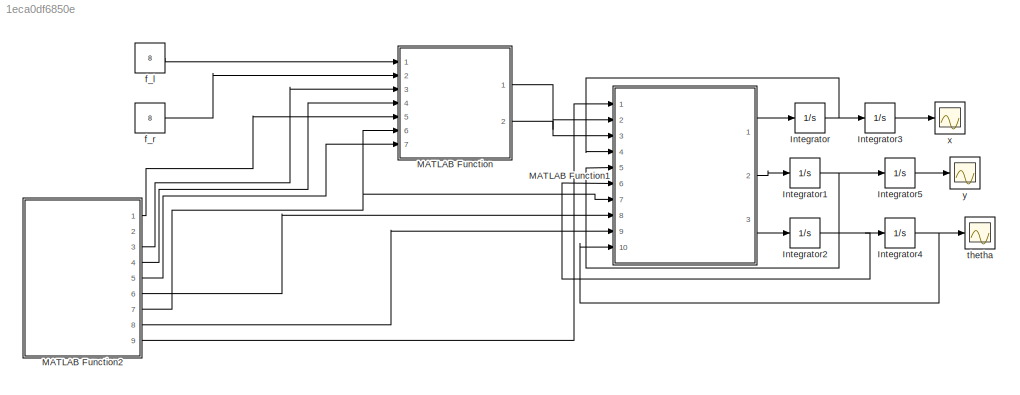
MODEL slx_1eca0df6850e
KIND model
CONFIG AbsTol = auto
CONFIG EnableMultiTasking = off
CONFIG FixedStep = auto
CONFIG MaxStep = auto
CONFIG MinStep = auto
CONFIG RelTol = 1e-3
CONFIG SampleTimeConstraint = Unconstrained
CONFIG Solver = VariableStepAuto
CONFIG SolverName = VariableStepAuto
CONFIG StartTime = 0.0
CONFIG StopTime = 50.0
BLOCK [Integrator] Integrator
  Ports = [1, 1]
BLOCK [Integrator] Integrator1
  Ports = [1, 1]
BLOCK [Integrator] Integrator2
  Ports = [1, 1]
BLOCK [Integrator] Integrator3
  Ports = [1, 1]
BLOCK [Integrator] Integrator4
  Ports = [1, 1]
BLOCK [Integrator] Integrator5
  Ports = [1, 1]
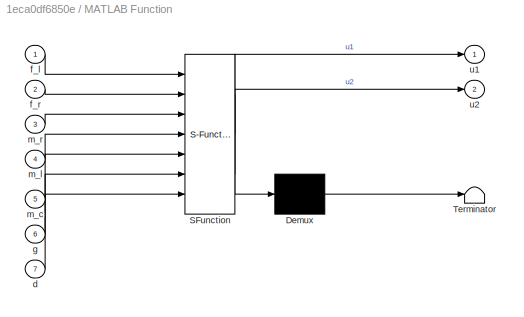
BLOCK [SubSystem] MATLAB Function
  ErrorFcn = Stateflow.Translate.translate
  PermitHierarchicalResolution = ExplicitOnly
  Ports = [7, 2]
  RequestExecContextInheritance = off
  SFBlockType = MATLAB Function
  TreatAsAtomicUnit = on
BLOCK [Demux] MATLAB Function/ Demux 
  Outputs = 1
  Ports = [1, 1]
BLOCK [S-Function] MATLAB Function/ SFunction 
  EnableBusSupport = on
  FunctionName = sf_sfun
  PortCounts = [7 3]
  Ports = [7, 3]
  SFcnIsStateOwnerBlock = off
  SFunctionDeploymentMode = off
  Tag = Stateflow S-Function cnt2019a_new 2
BLOCK [Terminator] MATLAB Function/ Terminator 
BLOCK [Inport] MATLAB Function/d
  IconDisplay = Port number
  Port = 7
BLOCK [Inport] MATLAB Function/f_l
  IconDisplay = Port number
BLOCK [Inport] MATLAB Function/f_r
  IconDisplay = Port number
  Port = 2
BLOCK [Inport] MATLAB Function/g
  IconDisplay = Port number
  Port = 6
BLOCK [Inport] MATLAB Function/m_c
  IconDisplay = Port number
  Port = 5
BLOCK [Inport] MATLAB Function/m_l
  IconDisplay = Port number
  Port = 4
BLOCK [Inport] MATLAB Function/m_r
  IconDisplay = Port number
  Port = 3
BLOCK [Outport] MATLAB Function/u1
  IconDisplay = Port number
BLOCK [Outport] MATLAB Function/u2
  IconDisplay = Port number
  Port = 2
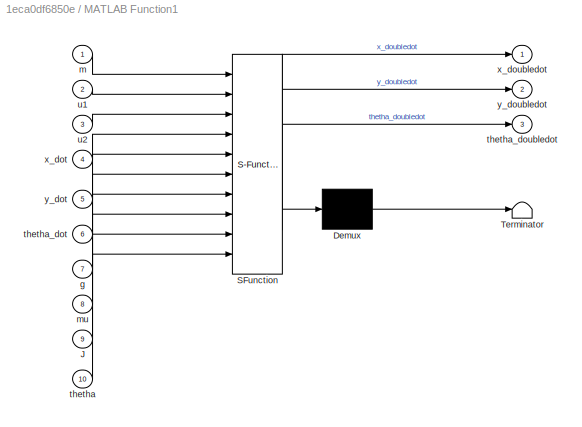
BLOCK [SubSystem] MATLAB Function1
  ErrorFcn = Stateflow.Translate.translate
  PermitHierarchicalResolution = ExplicitOnly
  Ports = [10, 3]
  RequestExecContextInheritance = off
  SFBlockType = MATLAB Function
  TreatAsAtomicUnit = on
BLOCK [Demux] MATLAB Function1/ Demux 
  Outputs = 1
  Ports = [1, 1]
BLOCK [S-Function] MATLAB Function1/ SFunction 
  EnableBusSupport = on
  FunctionName = sf_sfun
  PortCounts = [10 4]
  Ports = [10, 4]
  SFcnIsStateOwnerBlock = off
  SFunctionDeploymentMode = off
  Tag = Stateflow S-Function cnt2019a_new 1
BLOCK [Terminator] MATLAB Function1/ Terminator 
BLOCK [Inport] MATLAB Function1/J
  IconDisplay = Port number
  Port = 9
BLOCK [Inport] MATLAB Function1/g
  IconDisplay = Port number
  Port = 7
BLOCK [Inport] MATLAB Function1/m
  IconDisplay = Port number
BLOCK [Inport] MATLAB Function1/mu
  IconDisplay = Port number
  Port = 8
BLOCK [Inport] MATLAB Function1/thetha
  IconDisplay = Port number
  Port = 10
BLOCK [Inport] MATLAB Function1/thetha_dot
  IconDisplay = Port number
  Port = 6
BLOCK [Outport] MATLAB Function1/thetha_doubledot
  IconDisplay = Port number
  Port = 3
BLOCK [Inport] MATLAB Function1/u1
  IconDisplay = Port number
  Port = 2
BLOCK [Inport] MATLAB Function1/u2
  IconDisplay = Port number
  Port = 3
BLOCK [Inport] MATLAB Function1/x_dot
  IconDisplay = Port number
  Port = 4
BLOCK [Outport] MATLAB Function1/x_doubledot
  IconDisplay = Port number
BLOCK [Inport] MATLAB Function1/y_dot
  IconDisplay = Port number
  Port = 5
BLOCK [Outport] MATLAB Function1/y_doubledot
  IconDisplay = Port number
  Port = 2
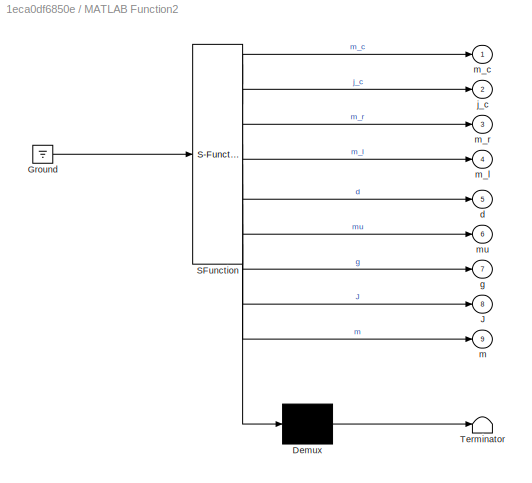
BLOCK [SubSystem] MATLAB Function2
  ErrorFcn = Stateflow.Translate.translate
  PermitHierarchicalResolution = ExplicitOnly
  Ports = [0, 9]
  RequestExecContextInheritance = off
  SFBlockType = MATLAB Function
  TreatAsAtomicUnit = on
BLOCK [Demux] MATLAB Function2/ Demux 
  Outputs = 1
  Ports = [1, 1]
BLOCK [Ground] MATLAB Function2/ Ground 
BLOCK [S-Function] MATLAB Function2/ SFunction 
  EnableBusSupport = on
  FunctionName = sf_sfun
  PortCounts = [1 10]
  Ports = [1, 10]
  SFcnIsStateOwnerBlock = off
  SFunctionDeploymentMode = off
  Tag = Stateflow S-Function cnt2019a_new 3
BLOCK [Terminator] MATLAB Function2/ Terminator 
BLOCK [Outport] MATLAB Function2/J
  IconDisplay = Port number
  Port = 8
BLOCK [Outport] MATLAB Function2/d
  IconDisplay = Port number
  Port = 5
BLOCK [Outport] MATLAB Function2/g
  IconDisplay = Port number
  Port = 7
BLOCK [Outport] MATLAB Function2/j_c
  IconDisplay = Port number
  Port = 2
BLOCK [Outport] MATLAB Function2/m
  IconDisplay = Port number
  Port = 9
BLOCK [Outport] MATLAB Function2/m_c
  IconDisplay = Port number
BLOCK [Outport] MATLAB Function2/m_l
  IconDisplay = Port number
  Port = 4
BLOCK [Outport] MATLAB Function2/m_r
  IconDisplay = Port number
  Port = 3
BLOCK [Outport] MATLAB Function2/mu
  IconDisplay = Port number
  Port = 6
BLOCK [Constant] f_l
  Value = 8
BLOCK [Constant] f_r 
  Value = 8
BLOCK [Scope] thetha
  Floating = off
  NumInputPorts = 1
  Ports = [1]
  ScopeSpecificationString = Simulink.scopes.TimeScopeBlockCfg('CurrentConfiguration', extmgr.ConfigurationSet(extmgr.Configuration('Core','General UI',true),extmgr.Configuration('Core','Source UI',true),extmgr.Configuration('Sources','WiredSimulink',true,'DataLoggingVariableName','ScopeData2'),extmgr.Configuration('Visuals','Time Domain',true,'SerializedDisplays',{struct('MinYLimReal','-1.00000','MaxYLimReal','1.00000','YLab...<+1370ch>
BLOCK [Scope] x
  Floating = off
  NumInputPorts = 1
  Ports = [1]
  ScopeSpecificationString = Simulink.scopes.TimeScopeBlockCfg('CurrentConfiguration', extmgr.ConfigurationSet(extmgr.Configuration('Core','General UI',true),extmgr.Configuration('Core','Source UI',true),extmgr.Configuration('Sources','WiredSimulink',true),extmgr.Configuration('Visuals','Time Domain',true,'SerializedDisplays',{struct('MinYLimReal','-1.00000','MaxYLimReal','1.00000','YLabelReal','','MinYLimMag','0.00000','MaxY...<+1331ch>
BLOCK [Scope] y
  Floating = off
  NumInputPorts = 1
  Ports = [1]
  ScopeSpecificationString = Simulink.scopes.TimeScopeBlockCfg('CurrentConfiguration', extmgr.ConfigurationSet(extmgr.Configuration('Core','General UI',true),extmgr.Configuration('Core','Source UI',true),extmgr.Configuration('Sources','WiredSimulink',true,'DataLoggingVariableName','ScopeData1'),extmgr.Configuration('Visuals','Time Domain',true,'SerializedDisplays',{struct('MinYLimReal','-133.85417','MaxYLimReal','1204.6875','...<+1426ch>
NET Integrator1:1 -> Integrator5:1, MATLAB Function1:5
NET Integrator2:1 -> Integrator4:1, MATLAB Function1:6
LINE Integrator3:1 -> x:1
NET Integrator4:1 -> MATLAB Function1:10, thetha:1
LINE Integrator5:1 -> y:1
NET Integrator:1 -> Integrator3:1, MATLAB Function1:4
LINE MATLAB Function1:1 -> Integrator:1
LINE MATLAB Function1:2 -> Integrator1:1
LINE MATLAB Function1:3 -> Integrator2:1
LINE MATLAB Function2:1 -> MATLAB Function:5
LINE MATLAB Function2:3 -> MATLAB Function:3
LINE MATLAB Function2:4 -> MATLAB Function:4
LINE MATLAB Function2:5 -> MATLAB Function:7
LINE MATLAB Function2:6 -> MATLAB Function1:8
NET MATLAB Function2:7 -> MATLAB Function1:7, MATLAB Function:6
LINE MATLAB Function2:8 -> MATLAB Function1:9
LINE MATLAB Function2:9 -> MATLAB Function1:1
LINE MATLAB Function:1 -> MATLAB Function1:2
LINE MATLAB Function:2 -> MATLAB Function1:3
LINE f_l:1 -> MATLAB Function:1
LINE f_r :1 -> MATLAB Function:2
note: NET lines group one-source signal fan-out (src -> all destinations, sorted); 1:1 wires keep LINE
CHART MATLAB Function1 states=1 transitions=1
  STATE_LABEL 'eML_blk_kernel()'
  STATE_LABEL 'SCRIPT:\nfunction [x_doubledot,y_doubledot,thetha_doubledot]= fcn(m,u1,u2,x_dot,y_dot,thetha_dot,g,mu,J,thetha)\ntemp=[g -1*mu 0 0; 0 0 0 0;0 0 0 0]*[thetha;x_dot ;y_dot ;thetha_dot] + [0 0;1/m 0;0 1/J]*[u1;u2];\n% disp(temp);\nx_doubledot=temp(1);\ny_doubledot=temp(2);\nthetha_doubledot=temp(3);\n\n\n\n                                                                                                         ...<+3608ch>'
CHART MATLAB Function states=1 transitions=1
  STATE_LABEL 'eML_blk_kernel()'
  STATE_LABEL 'SCRIPT:\nfunction [u1,u2]= fcn(f_l,f_r,m_r,m_l,m_c,g,d)\n\nu1=f_l+f_r-(m_c+m_r+m_l)*g;\nu2=(f_l-f_r)*d;\n'
CHART MATLAB Function2 states=1 transitions=1
  STATE_LABEL 'eML_blk_kernel()'
  STATE_LABEL 'SCRIPT:\nfunction [m_c,j_c,m_r,m_l,d,mu,g,J,m]= constraints\n m_c=1;\n j_c=0.0042;\n m_r=0.25;\n m_l=0.25;\n d=0.3;\n mu=0.1;\n g=9.81;\n J=j_c+2*m_c*d^2;\n m=m_c+m_r+m_l;'
